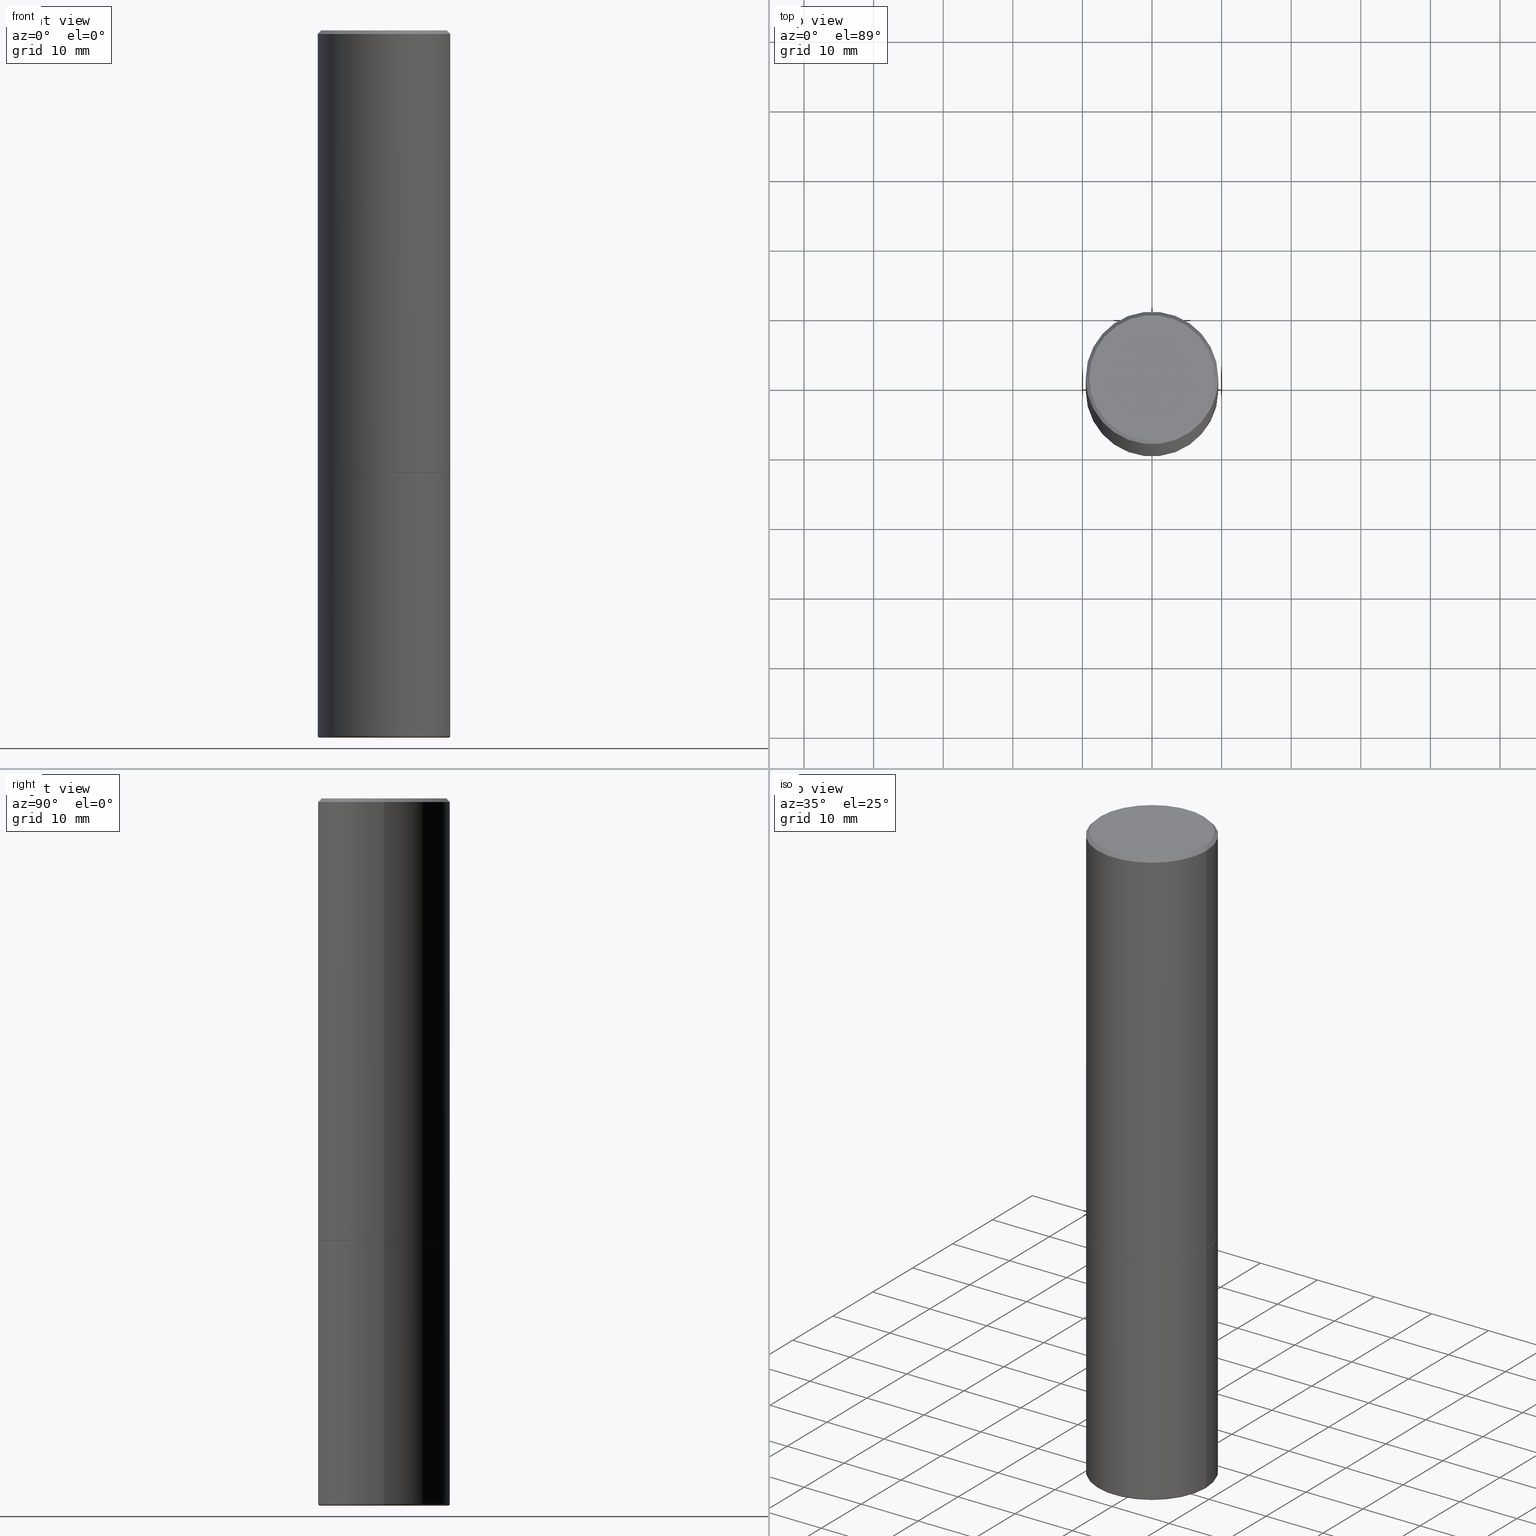
[diagram: canonical four-view strip — front | top / right | iso, engineering-drawing reading convention]
A machine part, canonical four-view strip (front | top / right | iso — engineering-drawing reading convention). The complete STEP part file that produces these views, byte-faithful:
ISO-10303-21;
HEADER;
FILE_DESCRIPTION (( 'STEP AP203' ),
    '1' );
FILE_NAME ('38867.STEP',
    '2024-03-03T18:12:23',
    ( '' ),
    ( '' ),
    'SwSTEP 2.0',
    'SolidWorks 2023',
    '' );
FILE_SCHEMA (( 'CONFIG_CONTROL_DESIGN' ));
ENDSEC;

DATA;
#1 = EDGE_CURVE ( 'NONE', #253, #224, #288, .T. ) ;
#2 = EDGE_LOOP ( 'NONE', ( #134, #81 ) ) ;
#3 = DIRECTION ( 'NONE',  ( -2.445468806185136597E-29, 3.491481338843145583E-15, 1.000000000000000000 ) ) ;
#4 = DIRECTION ( 'NONE',  ( -2.445468806185136597E-29, 3.491481338843145583E-15, 1.000000000000000000 ) ) ;
#5 = DESIGN_CONTEXT ( 'detailed design', #12, 'design' ) ;
#6 = LOCAL_TIME ( 13, 12, 23.00000000000000000, #44 ) ;
#7 = AXIS2_PLACEMENT_3D ( 'NONE', #163, #262, #380 ) ;
#8 = CARTESIAN_POINT ( 'NONE',  ( 0.000000000000000000, 0.000000000000000000, 0.000000000000000000 ) ) ;
#9 = ADVANCED_FACE ( 'NONE', ( #148 ), #403, .F. ) ;
#10 = CARTESIAN_POINT ( 'NONE',  ( 9.757420536678694842E-29, -1.393101054198414910E-14, -3.989999999999999769 ) ) ;
#11 = APPROVAL_ROLE ( '' ) ;
#12 = APPLICATION_CONTEXT ( 'configuration controlled 3d designs of mechanical parts and assemblies' ) ;
#13 = DIRECTION ( 'NONE',  ( -2.445468806185136597E-29, 3.491481338843145583E-15, 1.000000000000000000 ) ) ;
#14 = APPROVAL ( #252, 'UNSPECIFIED' ) ;
#15 = PLANE ( 'NONE',  #314 ) ;
#16 = APPROVAL_STATUS ( 'not_yet_approved' ) ;
#17 = ORIENTED_EDGE ( 'NONE', *, *, #317, .T. ) ;
#18 = VECTOR ( 'NONE', #126, 39.37007874015748143 ) ;
#19 = CLOSED_SHELL ( 'NONE', ( #154, #405, #174, #276, #300, #394, #109, #62 ) ) ;
#20 = DIRECTION ( 'NONE',  ( 1.000000000000000000, -6.982962677686265922E-15, 0.000000000000000000 ) ) ;
#21 = ORIENTED_EDGE ( 'NONE', *, *, #159, .F. ) ;
#22 = PRODUCT_DEFINITION ( 'UNKNOWN', '', #124, #5 ) ;
#23 = LOCAL_TIME ( 13, 12, 23.00000000000000000, #46 ) ;
#24 = ORIENTED_EDGE ( 'NONE', *, *, #73, .T. ) ;
#25 = FACE_OUTER_BOUND ( 'NONE', #297, .T. ) ;
#26 = ORIENTED_EDGE ( 'NONE', *, *, #189, .T. ) ;
#27 = DIRECTION ( 'NONE',  ( 1.000000000000000000, -6.982962677686265922E-15, 4.874095744806113407E-29 ) ) ;
#28 = CARTESIAN_POINT ( 'NONE',  ( 0.3649999999999999356, -1.651470673272807063E-14, -4.000000000000000000 ) ) ;
#29 = PRODUCT_DEFINITION_SHAPE ( 'NONE', 'NONE',  #22 ) ;
#30 = CARTESIAN_POINT ( 'NONE',  ( -0.3749999999999999445, 2.664535259100375303E-15, -1.844600658845589318E-29 ) ) ;
#31 = EDGE_CURVE ( 'NONE', #186, #303, #146, .T. ) ;
#32 = VERTEX_POINT ( 'NONE', #150 ) ;
#33 = DIRECTION ( 'NONE',  ( -2.445468806185136597E-29, 3.491481338843145583E-15, 1.000000000000000000 ) ) ;
#34 = DIRECTION ( 'NONE',  ( 1.000000000000000000, -6.982962677686266711E-15, 4.876176775795935793E-29 ) ) ;
#35 = EDGE_LOOP ( 'NONE', ( #408, #136, #194, #264 ) ) ;
#36 = CARTESIAN_POINT ( 'NONE',  ( 0.3739999999999999991, -1.134033138856252894E-14, -2.500000000000000000 ) ) ;
#37 = ORIENTED_EDGE ( 'NONE', *, *, #191, .F. ) ;
#38 = CARTESIAN_POINT ( 'NONE',  ( 9.781875224740546387E-29, -1.396592535537258233E-14, -4.000000000000000000 ) ) ;
#39 = CARTESIAN_POINT ( 'NONE',  ( 0.3750000000000001110, -2.642516375941188423E-15, -0.02000000000000008715 ) ) ;
#40 = ORIENTED_EDGE ( 'NONE', *, *, #212, .T. ) ;
#41 = DIRECTION ( 'NONE',  ( 1.000000000000000000, -6.982962677686265922E-15, 4.874095744806113407E-29 ) ) ;
#42 = APPROVAL_PERSON_ORGANIZATION ( #114, #247, #11 ) ;
#43 = EDGE_CURVE ( 'NONE', #165, #381, #168, .T. ) ;
#44 = COORDINATED_UNIVERSAL_TIME_OFFSET ( 5, 0, .BEHIND. ) ;
#45 = ORIENTED_EDGE ( 'NONE', *, *, #98, .F. ) ;
#46 = COORDINATED_UNIVERSAL_TIME_OFFSET ( 5, 0, .BEHIND. ) ;
#47 = EDGE_LOOP ( 'NONE', ( #233, #40, #265, #117 ) ) ;
#48 = CALENDAR_DATE ( 2024, 3, 3 ) ;
#49 = EDGE_CURVE ( 'NONE', #303, #224, #72, .T. ) ;
#50 = VECTOR ( 'NONE', #193, 39.37007874015748143 ) ;
#51 = VERTEX_POINT ( 'NONE', #220 ) ;
#52 = PERSON_AND_ORGANIZATION ( #328, #144 ) ;
#53 = FACE_OUTER_BOUND ( 'NONE', #2, .T. ) ;
#54 = ORIENTED_EDGE ( 'NONE', *, *, #1, .T. ) ;
#55 = DIRECTION ( 'NONE',  ( 2.445468806185136597E-29, -3.491481338843145583E-15, -1.000000000000000000 ) ) ;
#56 = ORIENTED_EDGE ( 'NONE', *, *, #211, .T. ) ;
#57 = CARTESIAN_POINT ( 'NONE',  ( 4.890937612370294178E-31, -6.982962677686321191E-17, -0.02000000000000008715 ) ) ;
#58 = EDGE_LOOP ( 'NONE', ( #321, #120 ) ) ;
#59 = CARTESIAN_POINT ( 'NONE',  ( 4.890937612370294178E-31, -6.982962677686321191E-17, -0.02000000000000008715 ) ) ;
#60 = LINE ( 'NONE', #30, #18 ) ;
#61 = DIRECTION ( 'NONE',  ( 0.7071067811867165487, -2.468850131084027659E-15, 0.7071067811863784858 ) ) ;
#62 = ADVANCED_FACE ( 'NONE', ( #53 ), #15, .F. ) ;
#63 = CYLINDRICAL_SURFACE ( 'NONE', #243, 0.3750000000000002220 ) ;
#64 = AXIS2_PLACEMENT_3D ( 'NONE', #75, #215, #278 ) ;
#65 =( CONVERSION_BASED_UNIT ( 'INCH', #244 ) LENGTH_UNIT ( ) NAMED_UNIT ( #141 ) );
#66 = DIRECTION ( 'NONE',  ( 1.000000000000000000, -6.982962677686267499E-15, 4.883557194083113462E-29 ) ) ;
#67 = FACE_OUTER_BOUND ( 'NONE', #58, .T. ) ;
#68 = CLOSED_SHELL ( 'NONE', ( #386, #125, #9, #389, #294, #336 ) ) ;
#69 = CYLINDRICAL_SURFACE ( 'NONE', #185, 0.3749999999999999445 ) ;
#70 = APPLICATION_PROTOCOL_DEFINITION ( 'international standard', 'config_control_design', 1994, #12 ) ;
#71 = CC_DESIGN_DATE_AND_TIME_ASSIGNMENT ( #183, #400, ( #214 ) ) ;
#72 = LINE ( 'NONE', #79, #393 ) ;
#73 = EDGE_CURVE ( 'NONE', #381, #165, #221, .T. ) ;
#74 = CARTESIAN_POINT ( 'NONE',  ( 0.000000000000000000, 0.000000000000000000, 0.000000000000000000 ) ) ;
#75 = CARTESIAN_POINT ( 'NONE',  ( 6.113672015462842613E-29, -8.728703347107864943E-15, -2.500000000000000000 ) ) ;
#76 = APPROVAL_PERSON_ORGANIZATION ( #119, #14, #367 ) ;
#77 = CIRCLE ( 'NONE', #364, 0.3749999999999999445 ) ;
#78 = PERSON_AND_ORGANIZATION_ROLE ( 'classification_officer' ) ;
#79 = CARTESIAN_POINT ( 'NONE',  ( 0.3749999999999999445, -2.618611004132349622E-15, 1.828566290923475642E-29 ) ) ;
#80 = EDGE_CURVE ( 'NONE', #51, #332, #251, .T. ) ;
#81 = ORIENTED_EDGE ( 'NONE', *, *, #143, .T. ) ;
#82 = EDGE_LOOP ( 'NONE', ( #329, #56, #155, #345 ) ) ;
#83 = CALENDAR_DATE ( 2024, 3, 3 ) ;
#84 = DIRECTION ( 'NONE',  ( -6.982962677686266711E-15, -1.000000000000000000, 3.491481338843145583E-15 ) ) ;
#85 = EDGE_LOOP ( 'NONE', ( #24, #162, #45, #412 ) ) ;
#86 = EDGE_CURVE ( 'NONE', #224, #253, #130, .T. ) ;
#87 = DIRECTION ( 'NONE',  ( -1.000000000000000000, 6.982962677686265922E-15, 0.000000000000000000 ) ) ;
#88 = ORIENTED_EDGE ( 'NONE', *, *, #236, .F. ) ;
#89 = DIRECTION ( 'NONE',  ( 7.105427357601001859E-15, 1.000000000000000000, -3.491481338843145583E-15 ) ) ;
#90 = CARTESIAN_POINT ( 'NONE',  ( -0.3739999999999999991, -6.071273515365089465E-15, -2.500000000000000000 ) ) ;
#91 = ORIENTED_EDGE ( 'NONE', *, *, #43, .F. ) ;
#92 = LINE ( 'NONE', #296, #50 ) ;
#93 = ORIENTED_EDGE ( 'NONE', *, *, #86, .T. ) ;
#94 = PRODUCT ( '38867', '38867', '', ( #397 ) ) ;
#95 = ORIENTED_EDGE ( 'NONE', *, *, #31, .T. ) ;
#96 = CARTESIAN_POINT ( 'NONE',  ( 9.781875224740546387E-29, -1.396592535537258233E-14, -4.000000000000000000 ) ) ;
#97 = ORIENTED_EDGE ( 'NONE', *, *, #180, .T. ) ;
#98 = EDGE_CURVE ( 'NONE', #129, #32, #373, .T. ) ;
#99 = DIRECTION ( 'NONE',  ( 1.000000000000000000, -6.982962677686268288E-15, 0.000000000000000000 ) ) ;
#100 = CC_DESIGN_APPROVAL ( #247, ( #124 ) ) ;
#101 = DIRECTION ( 'NONE',  ( -2.445468806185136597E-29, 3.491481338843145583E-15, 1.000000000000000000 ) ) ;
#102 = CC_DESIGN_PERSON_AND_ORGANIZATION_ASSIGNMENT ( #188, #111, ( #124 ) ) ;
#103 = AXIS2_PLACEMENT_3D ( 'NONE', #182, #338, #309 ) ;
#104 = ORIENTED_EDGE ( 'NONE', *, *, #110, .T. ) ;
#105 =( NAMED_UNIT ( * ) SI_UNIT ( $, .STERADIAN. ) SOLID_ANGLE_UNIT ( ) );
#106 = AXIS2_PLACEMENT_3D ( 'NONE', #359, #335, #133 ) ;
#107 = CARTESIAN_POINT ( 'NONE',  ( 4.890937612370294178E-31, -6.982962677686321191E-17, -0.02000000000000008715 ) ) ;
#108 = VECTOR ( 'NONE', #416, 39.37007874015748143 ) ;
#109 = ADVANCED_FACE ( 'NONE', ( #396 ), #113, .F. ) ;
#110 = EDGE_CURVE ( 'NONE', #186, #284, #202, .T. ) ;
#111 = PERSON_AND_ORGANIZATION_ROLE ( 'creator' ) ;
#112 = APPLICATION_PROTOCOL_DEFINITION ( 'international standard', 'config_control_design', 1994, #392 ) ;
#113 = PLANE ( 'NONE',  #151 ) ;
#114 = PERSON_AND_ORGANIZATION ( #328, #144 ) ;
#115 = AXIS2_PLACEMENT_3D ( 'NONE', #96, #230, #290 ) ;
#116 = CC_DESIGN_PERSON_AND_ORGANIZATION_ASSIGNMENT ( #365, #184, ( #124 ) ) ;
#117 = ORIENTED_EDGE ( 'NONE', *, *, #361, .F. ) ;
#118 = CC_DESIGN_SECURITY_CLASSIFICATION ( #214, ( #124 ) ) ;
#119 = PERSON_AND_ORGANIZATION ( #328, #144 ) ;
#120 = ORIENTED_EDGE ( 'NONE', *, *, #158, .F. ) ;
#121 = APPROVAL_DATE_TIME ( #249, #247 ) ;
#122 = CARTESIAN_POINT ( 'NONE',  ( 0.3649999999999999356, -1.647979191933963740E-14, -3.989999999999999769 ) ) ;
#123 = DIRECTION ( 'NONE',  ( 1.000000000000000000, -6.982962677686262766E-15, 0.000000000000000000 ) ) ;
#124 = PRODUCT_DEFINITION_FORMATION_WITH_SPECIFIED_SOURCE ( 'ANY', '', #94, .NOT_KNOWN. ) ;
#125 = ADVANCED_FACE ( 'NONE', ( #25 ), #358, .T. ) ;
#126 = DIRECTION ( 'NONE',  ( -2.445468806185136877E-29, 3.491481338843145188E-15, 1.000000000000000000 ) ) ;
#127 = CARTESIAN_POINT ( 'NONE',  ( -2.922783960138615261E-45, 4.172960877065252270E-31, 1.195183497228115035E-16 ) ) ;
#128 = CIRCLE ( 'NONE', #178, 0.3750000000000001110 ) ;
#129 = VERTEX_POINT ( 'NONE', #169 ) ;
#130 = CIRCLE ( 'NONE', #399, 0.3750000000000000555 ) ;
#131 = CARTESIAN_POINT ( 'NONE',  ( 9.757420536678694842E-29, -1.393101054198414910E-14, -3.989999999999999769 ) ) ;
#132 = ORIENTED_EDGE ( 'NONE', *, *, #404, .T. ) ;
#133 = DIRECTION ( 'NONE',  ( 1.000000000000000000, -6.982962677686263555E-15, 0.000000000000000000 ) ) ;
#134 = ORIENTED_EDGE ( 'NONE', *, *, #80, .T. ) ;
#135 = DIRECTION ( 'NONE',  ( 2.438088387897960049E-29, -3.491481338843145188E-15, -1.000000000000000000 ) ) ;
#136 = ORIENTED_EDGE ( 'NONE', *, *, #236, .T. ) ;
#137 = CC_DESIGN_APPROVAL ( #14, ( #214 ) ) ;
#138 = DIRECTION ( 'NONE',  ( 1.000000000000000000, -6.982962677686266711E-15, 4.876176775795935793E-29 ) ) ;
#139 = AXIS2_PLACEMENT_3D ( 'NONE', #57, #55, #195 ) ;
#140 = CARTESIAN_POINT ( 'NONE',  ( 0.3750000000000001110, -2.642516375941188423E-15, -0.02000000000000008715 ) ) ;
#141 = DIMENSIONAL_EXPONENTS ( 1.000000000000000000, 0.000000000000000000, 0.000000000000000000, 0.000000000000000000, 0.000000000000000000, 0.000000000000000000, 0.000000000000000000 ) ;
#142 = DIRECTION ( 'NONE',  ( -1.000000000000000000, 6.982962677686265922E-15, -4.876176775795935793E-29 ) ) ;
#143 = EDGE_CURVE ( 'NONE', #332, #51, #197, .T. ) ;
#144 = ORGANIZATION ( 'UNSPECIFIED', 'UNSPECIFIED', '' ) ;
#145 = UNCERTAINTY_MEASURE_WITH_UNIT (LENGTH_MEASURE( 1.000000000000000082E-05 ), #65, 'distance_accuracy_value', 'NONE');
#146 = CIRCLE ( 'NONE', #417, 0.01000000000000009909 ) ;
#147 = APPROVAL_ROLE ( '' ) ;
#148 = FACE_OUTER_BOUND ( 'NONE', #410, .T. ) ;
#149 = DIRECTION ( 'NONE',  ( 0.000000000000000000, 0.000000000000000000, 1.000000000000000000 ) ) ;
#150 = CARTESIAN_POINT ( 'NONE',  ( -0.3750000000000002776, -1.732985487172563764E-15, -2.499000000000000110 ) ) ;
#151 = AXIS2_PLACEMENT_3D ( 'NONE', #248, #292, #409 ) ;
#152 = APPROVAL_STATUS ( 'not_yet_approved' ) ;
#153 = ORIENTED_EDGE ( 'NONE', *, *, #378, .F. ) ;
#154 = ADVANCED_FACE ( 'NONE', ( #323 ), #187, .T. ) ;
#155 = ORIENTED_EDGE ( 'NONE', *, *, #86, .F. ) ;
#156 = DIRECTION ( 'NONE',  ( -2.445468806185136597E-29, 3.491481338843145583E-15, 1.000000000000000000 ) ) ;
#157 = CC_DESIGN_PERSON_AND_ORGANIZATION_ASSIGNMENT ( #342, #78, ( #214 ) ) ;
#158 = EDGE_CURVE ( 'NONE', #284, #186, #340, .T. ) ;
#159 = EDGE_CURVE ( 'NONE', #51, #343, #351, .T. ) ;
#160 = AXIS2_PLACEMENT_3D ( 'NONE', #390, #3, #34 ) ;
#161 = AXIS2_PLACEMENT_3D ( 'NONE', #376, #232, #326 ) ;
#162 = ORIENTED_EDGE ( 'NONE', *, *, #204, .T. ) ;
#163 = CARTESIAN_POINT ( 'NONE',  ( 9.781875224740546387E-29, -1.396592535537258233E-14, -4.000000000000000000 ) ) ;
#164 = CARTESIAN_POINT ( 'NONE',  ( 6.113672015462842613E-29, -8.728703347107864943E-15, -2.500000000000000000 ) ) ;
#165 = VERTEX_POINT ( 'NONE', #226 ) ;
#166 = ORIENTED_EDGE ( 'NONE', *, *, #31, .F. ) ;
#167 = CONICAL_SURFACE ( 'NONE', #263, 0.3750000000000001110, 0.7853981633974463916 ) ;
#168 = CIRCLE ( 'NONE', #64, 0.3739999999999999991 ) ;
#169 = CARTESIAN_POINT ( 'NONE',  ( 0.3750000000000002776, -1.134382286990137353E-14, -2.499000000000000110 ) ) ;
#170 = MANIFOLD_SOLID_BREP ( 'Body-Move/Copy2[1]', #68 ) ;
#171 = ORIENTED_EDGE ( 'NONE', *, *, #378, .T. ) ;
#172 = ORIENTED_EDGE ( 'NONE', *, *, #49, .T. ) ;
#173 = CARTESIAN_POINT ( 'NONE',  ( 0.000000000000000000, 0.000000000000000000, 0.000000000000000000 ) ) ;
#174 = ADVANCED_FACE ( 'NONE', ( #223 ), #322, .T. ) ;
#175 = CARTESIAN_POINT ( 'NONE',  ( 0.000000000000000000, 0.000000000000000000, 0.000000000000000000 ) ) ;
#176 = FACE_OUTER_BOUND ( 'NONE', #82, .T. ) ;
#177 = FACE_OUTER_BOUND ( 'NONE', #222, .T. ) ;
#178 = AXIS2_PLACEMENT_3D ( 'NONE', #107, #210, #353 ) ;
#179 = CARTESIAN_POINT ( 'NONE',  ( 6.113672015462842613E-29, -8.728703347107864943E-15, -2.500000000000000000 ) ) ;
#180 = EDGE_CURVE ( 'NONE', #218, #303, #77, .T. ) ;
#181 = DATE_AND_TIME ( #217, #6 ) ;
#182 = CARTESIAN_POINT ( 'NONE',  ( 6.113672015462842613E-29, -8.728703347107864943E-15, -2.500000000000000000 ) ) ;
#183 = DATE_AND_TIME ( #310, #23 ) ;
#184 = PERSON_AND_ORGANIZATION_ROLE ( 'design_supplier' ) ;
#185 = AXIS2_PLACEMENT_3D ( 'NONE', #8, #101, #138 ) ;
#186 = VERTEX_POINT ( 'NONE', #28 ) ;
#187 = CONICAL_SURFACE ( 'NONE', #295, 0.3739999999999999991, 0.7853981633976873100 ) ;
#188 = PERSON_AND_ORGANIZATION ( #328, #144 ) ;
#189 = EDGE_CURVE ( 'NONE', #381, #129, #382, .T. ) ;
#190 = DIRECTION ( 'NONE',  ( 1.000000000000000000, -6.982962677686268288E-15, 0.000000000000000000 ) ) ;
#191 = EDGE_CURVE ( 'NONE', #284, #218, #339, .T. ) ;
#192 = ORIENTED_EDGE ( 'NONE', *, *, #180, .F. ) ;
#193 = DIRECTION ( 'NONE',  ( -2.445468806185136877E-29, 3.491481338843145188E-15, 1.000000000000000000 ) ) ;
#194 = ORIENTED_EDGE ( 'NONE', *, *, #361, .T. ) ;
#195 = DIRECTION ( 'NONE',  ( -1.000000000000000000, 6.982962677686265922E-15, 0.000000000000000000 ) ) ;
#196 = AXIS2_PLACEMENT_3D ( 'NONE', #209, #33, #99 ) ;
#197 = CIRCLE ( 'NONE', #388, 0.3549999999999999822 ) ;
#198 = DIRECTION ( 'NONE',  ( 2.445468806185136597E-29, -3.491481338843145583E-15, -1.000000000000000000 ) ) ;
#199 = CARTESIAN_POINT ( 'NONE',  ( 0.3750000000000000555, -1.134731435124021338E-14, -2.500000000000000000 ) ) ;
#200 = DIRECTION ( 'NONE',  ( -2.445468806185136597E-29, 3.491481338843145583E-15, 1.000000000000000000 ) ) ;
#201 = CIRCLE ( 'NONE', #106, 0.3749999999999999445 ) ;
#202 = CIRCLE ( 'NONE', #7, 0.3649999999999999356 ) ;
#203 = DIRECTION ( 'NONE',  ( 1.000000000000000000, -6.982962677686266711E-15, 4.876176775795935793E-29 ) ) ;
#204 = EDGE_CURVE ( 'NONE', #165, #32, #377, .T. ) ;
#205 = CARTESIAN_POINT ( 'NONE',  ( -0.3750000000000001110, 2.548781377355487113E-15, -0.02000000000000008715 ) ) ;
#206 =( NAMED_UNIT ( * ) PLANE_ANGLE_UNIT ( ) SI_UNIT ( $, .RADIAN. ) );
#207 = VECTOR ( 'NONE', #385, 39.37007874015748143 ) ;
#208 = ORIENTED_EDGE ( 'NONE', *, *, #159, .T. ) ;
#209 = CARTESIAN_POINT ( 'NONE',  ( 6.113672015462842613E-29, -8.728703347107864943E-15, -2.500000000000000000 ) ) ;
#210 = DIRECTION ( 'NONE',  ( -2.445468806185136597E-29, 3.491481338843145583E-15, 1.000000000000000000 ) ) ;
#211 = EDGE_CURVE ( 'NONE', #218, #253, #60, .T. ) ;
#212 = EDGE_CURVE ( 'NONE', #32, #343, #92, .T. ) ;
#213 = DIRECTION ( 'NONE',  ( -2.445468806185136597E-29, 3.491481338843145583E-15, 1.000000000000000000 ) ) ;
#214 = SECURITY_CLASSIFICATION ( '', '', #337 ) ;
#215 = DIRECTION ( 'NONE',  ( -2.445468806185136597E-29, 3.491481338843145583E-15, 1.000000000000000000 ) ) ;
#216 = DIRECTION ( 'NONE',  ( 2.438088387897960049E-29, -3.491481338843145188E-15, -1.000000000000000000 ) ) ;
#217 = CALENDAR_DATE ( 2024, 3, 3 ) ;
#218 = VERTEX_POINT ( 'NONE', #418 ) ;
#219 = CALENDAR_DATE ( 2024, 3, 3 ) ;
#220 = CARTESIAN_POINT ( 'NONE',  ( -0.3549999999999999822, 2.513866563967055858E-15, 1.195183497227940499E-16 ) ) ;
#221 = CIRCLE ( 'NONE', #355, 0.3739999999999999991 ) ;
#222 = EDGE_LOOP ( 'NONE', ( #375, #97, #172, #237 ) ) ;
#223 = FACE_OUTER_BOUND ( 'NONE', #318, .T. ) ;
#224 = VERTEX_POINT ( 'NONE', #199 ) ;
#225 = CARTESIAN_POINT ( 'NONE',  ( 6.111226546656657010E-29, -8.725211865769021935E-15, -2.499000000000000110 ) ) ;
#226 = CARTESIAN_POINT ( 'NONE',  ( -0.3739999999999999991, -6.065975061016866274E-15, -2.500000000000000000 ) ) ;
#227 = CIRCLE ( 'NONE', #312, 0.3750000000000002776 ) ;
#228 = AXIS2_PLACEMENT_3D ( 'NONE', #315, #156, #308 ) ;
#229 = ORIENTED_EDGE ( 'NONE', *, *, #204, .F. ) ;
#230 = DIRECTION ( 'NONE',  ( -2.445468806185136597E-29, 3.491481338843145583E-15, 1.000000000000000000 ) ) ;
#231 = EDGE_LOOP ( 'NONE', ( #289, #91 ) ) ;
#232 = DIRECTION ( 'NONE',  ( -2.445468806185136597E-29, 3.491481338843145583E-15, 1.000000000000000000 ) ) ;
#233 = ORIENTED_EDGE ( 'NONE', *, *, #98, .T. ) ;
#234 = CC_DESIGN_DATE_AND_TIME_ASSIGNMENT ( #181, #255, ( #22 ) ) ;
#235 = DIRECTION ( 'NONE',  ( 1.000000000000000000, -6.982962677686265922E-15, 0.000000000000000000 ) ) ;
#236 = EDGE_CURVE ( 'NONE', #32, #129, #227, .T. ) ;
#237 = ORIENTED_EDGE ( 'NONE', *, *, #1, .F. ) ;
#238 = APPROVAL_PERSON_ORGANIZATION ( #52, #372, #147 ) ;
#239 = ORIENTED_EDGE ( 'NONE', *, *, #158, .T. ) ;
#240 =( LENGTH_UNIT ( ) NAMED_UNIT ( * ) SI_UNIT ( $, .METRE. ) );
#241 = ADVANCED_BREP_SHAPE_REPRESENTATION ( '38867', ( #170, #299, #387 ), #344 ) ;
#242 = CARTESIAN_POINT ( 'NONE',  ( 0.3549999999999999822, -2.538996582575041048E-15, 1.195183497228290556E-16 ) ) ;
#243 = AXIS2_PLACEMENT_3D ( 'NONE', #173, #298, #356 ) ;
#244 = LENGTH_MEASURE_WITH_UNIT ( LENGTH_MEASURE( 0.02539999999999999897 ), #240 );
#245 = APPROVAL_DATE_TIME ( #277, #372 ) ;
#246 = PERSON_AND_ORGANIZATION_ROLE ( 'design_owner' ) ;
#247 = APPROVAL ( #16, 'UNSPECIFIED' ) ;
#248 = CARTESIAN_POINT ( 'NONE',  ( 6.113672015462842613E-29, -8.728703347107864943E-15, -2.500000000000000000 ) ) ;
#249 = DATE_AND_TIME ( #48, #286 ) ;
#250 = CARTESIAN_POINT ( 'NONE',  ( 6.113672015462842613E-29, -8.728703347107864943E-15, -2.500000000000000000 ) ) ;
#251 = CIRCLE ( 'NONE', #350, 0.3549999999999999822 ) ;
#252 = APPROVAL_STATUS ( 'not_yet_approved' ) ;
#253 = VERTEX_POINT ( 'NONE', #258 ) ;
#254 = EDGE_LOOP ( 'NONE', ( #229, #283, #26, #88 ) ) ;
#255 = DATE_TIME_ROLE ( 'creation_date' ) ;
#256 = CARTESIAN_POINT ( 'NONE',  ( 2.478951750578624209E-15, 0.3549999999999999822, -1.179716700427910864E-15 ) ) ;
#257 = CIRCLE ( 'NONE', #415, 0.3750000000000001110 ) ;
#258 = CARTESIAN_POINT ( 'NONE',  ( -0.3750000000000000555, -8.665321685445630537E-15, -2.500000000000000000 ) ) ;
#259 = DIRECTION ( 'NONE',  ( -2.445468806185136597E-29, 3.491481338843145583E-15, 1.000000000000000000 ) ) ;
#260 = CARTESIAN_POINT ( 'NONE',  ( 0.3739999999999999991, -1.134033138856252894E-14, -2.500000000000000000 ) ) ;
#261 = ORIENTED_EDGE ( 'NONE', *, *, #191, .T. ) ;
#262 = DIRECTION ( 'NONE',  ( -2.445468806185136597E-29, 3.491481338843145583E-15, 1.000000000000000000 ) ) ;
#263 = AXIS2_PLACEMENT_3D ( 'NONE', #59, #198, #87 ) ;
#264 = ORIENTED_EDGE ( 'NONE', *, *, #317, .F. ) ;
#265 = ORIENTED_EDGE ( 'NONE', *, *, #404, .F. ) ;
#266 = CARTESIAN_POINT ( 'NONE',  ( -0.3649999999999999356, -1.133752955645978349E-14, -3.989999999999999769 ) ) ;
#267 = CC_DESIGN_PERSON_AND_ORGANIZATION_ASSIGNMENT ( #395, #246, ( #94 ) ) ;
#268 = PLANE ( 'NONE',  #274 ) ;
#269 = DIRECTION ( 'NONE',  ( -2.445468806185136597E-29, 3.491481338843145583E-15, 1.000000000000000000 ) ) ;
#270 = AXIS2_PLACEMENT_3D ( 'NONE', #250, #13, #366 ) ;
#271 = CARTESIAN_POINT ( 'NONE',  ( 4.890937612370294178E-31, -6.982962677686321191E-17, -0.02000000000000008715 ) ) ;
#272 = PRODUCT_RELATED_PRODUCT_CATEGORY ( 'detail', '', ( #94 ) ) ;
#273 = CYLINDRICAL_SURFACE ( 'NONE', #293, 0.3750000000000002220 ) ;
#274 = AXIS2_PLACEMENT_3D ( 'NONE', #38, #135, #142 ) ;
#275 = DATE_AND_TIME ( #219, #319 ) ;
#276 = ADVANCED_FACE ( 'NONE', ( #374 ), #167, .T. ) ;
#277 = DATE_AND_TIME ( #83, #307 ) ;
#278 = DIRECTION ( 'NONE',  ( 1.000000000000000000, -6.982962677686268288E-15, 0.000000000000000000 ) ) ;
#279 = TOROIDAL_SURFACE ( 'NONE', #379, 0.3649999999999999356, 0.01000000000000009909 ) ;
#280 = COORDINATED_UNIVERSAL_TIME_OFFSET ( 5, 0, .BEHIND. ) ;
#281 = DIRECTION ( 'NONE',  ( -2.445468806185136597E-29, 3.491481338843145583E-15, 1.000000000000000000 ) ) ;
#282 = DIRECTION ( 'NONE',  ( 1.000000000000000000, 0.000000000000000000, 0.000000000000000000 ) ) ;
#283 = ORIENTED_EDGE ( 'NONE', *, *, #43, .T. ) ;
#284 = VERTEX_POINT ( 'NONE', #316 ) ;
#285 = ORIENTED_EDGE ( 'NONE', *, *, #80, .F. ) ;
#286 = LOCAL_TIME ( 13, 12, 23.00000000000000000, #280 ) ;
#287 = FACE_OUTER_BOUND ( 'NONE', #35, .T. ) ;
#288 = CIRCLE ( 'NONE', #270, 0.3750000000000000555 ) ;
#289 = ORIENTED_EDGE ( 'NONE', *, *, #73, .F. ) ;
#290 = DIRECTION ( 'NONE',  ( 1.000000000000000000, -6.982962677686267499E-15, 0.000000000000000000 ) ) ;
#291 = CARTESIAN_POINT ( 'NONE',  ( -0.3750000000000001110, 2.548781377355487113E-15, -0.02000000000000008715 ) ) ;
#292 = DIRECTION ( 'NONE',  ( -2.438088387897960049E-29, 3.491481338843145188E-15, 1.000000000000000000 ) ) ;
#293 = AXIS2_PLACEMENT_3D ( 'NONE', #175, #4, #203 ) ;
#294 = ADVANCED_FACE ( 'NONE', ( #324 ), #279, .T. ) ;
#295 = AXIS2_PLACEMENT_3D ( 'NONE', #164, #200, #352 ) ;
#296 = CARTESIAN_POINT ( 'NONE',  ( -0.3750000000000002220, 2.664535259100377275E-15, -1.844600658845590719E-29 ) ) ;
#297 = EDGE_LOOP ( 'NONE', ( #104, #261, #383, #166 ) ) ;
#298 = DIRECTION ( 'NONE',  ( -2.445468806185136597E-29, 3.491481338843145583E-15, 1.000000000000000000 ) ) ;
#299 = MANIFOLD_SOLID_BREP ( 'Body-Move/Copy2[2]', #19 ) ;
#300 = ADVANCED_FACE ( 'NONE', ( #287 ), #273, .T. ) ;
#301 = FACE_OUTER_BOUND ( 'NONE', #47, .T. ) ;
#302 = CC_DESIGN_APPROVAL ( #372, ( #22 ) ) ;
#303 = VERTEX_POINT ( 'NONE', #334 ) ;
#304 = FACE_OUTER_BOUND ( 'NONE', #254, .T. ) ;
#305 = DIRECTION ( 'NONE',  ( 0.7071067811865461294, -7.319954787623251312E-15, -0.7071067811865489050 ) ) ;
#306 = CC_DESIGN_PERSON_AND_ORGANIZATION_ASSIGNMENT ( #341, #363, ( #22 ) ) ;
#307 = LOCAL_TIME ( 13, 12, 23.00000000000000000, #402 ) ;
#308 = DIRECTION ( 'NONE',  ( 1.000000000000000000, -6.982962677686265922E-15, 0.000000000000000000 ) ) ;
#309 = DIRECTION ( 'NONE',  ( -1.000000000000000000, 6.982962677686265922E-15, -4.876176775795935793E-29 ) ) ;
#310 = CALENDAR_DATE ( 2024, 3, 3 ) ;
#311 = CARTESIAN_POINT ( 'NONE',  ( -2.922783960138615261E-45, 4.172960877065252270E-31, 1.195183497228115035E-16 ) ) ;
#312 = AXIS2_PLACEMENT_3D ( 'NONE', #225, #347, #20 ) ;
#313 = SHAPE_DEFINITION_REPRESENTATION ( #29, #241 ) ;
#314 = AXIS2_PLACEMENT_3D ( 'NONE', #256, #216, #406 ) ;
#315 = CARTESIAN_POINT ( 'NONE',  ( 6.111226546656657010E-29, -8.725211865769021935E-15, -2.499000000000000110 ) ) ;
#316 = CARTESIAN_POINT ( 'NONE',  ( -0.3649999999999999356, -1.131945982636599743E-14, -4.000000000000000000 ) ) ;
#317 = EDGE_CURVE ( 'NONE', #343, #398, #128, .T. ) ;
#318 = EDGE_LOOP ( 'NONE', ( #348, #171, #132, #21 ) ) ;
#319 = LOCAL_TIME ( 13, 12, 23.00000000000000000, #369 ) ;
#320 = DIRECTION ( 'NONE',  ( -2.445468806185136597E-29, 3.491481338843145583E-15, 1.000000000000000000 ) ) ;
#321 = ORIENTED_EDGE ( 'NONE', *, *, #110, .F. ) ;
#322 = CONICAL_SURFACE ( 'NONE', #139, 0.3750000000000001110, 0.7853981633974463916 ) ;
#323 = FACE_OUTER_BOUND ( 'NONE', #85, .T. ) ;
#324 = FACE_OUTER_BOUND ( 'NONE', #368, .T. ) ;
#325 = EDGE_CURVE ( 'NONE', #303, #218, #201, .T. ) ;
#326 = DIRECTION ( 'NONE',  ( 1.000000000000000000, -6.982962677686267499E-15, 4.883557194083113462E-29 ) ) ;
#327 = VECTOR ( 'NONE', #349, 39.37007874015748143 ) ;
#328 = PERSON ( 'UNSPECIFIED', 'UNSPECIFIED', 'UNSPECIFIED', ('UNSPECIFIED'), ('UNSPECIFIED'), ('UNSPECIFIED') ) ;
#329 = ORIENTED_EDGE ( 'NONE', *, *, #325, .T. ) ;
#330 = CYLINDRICAL_SURFACE ( 'NONE', #160, 0.3749999999999999445 ) ;
#331 = CARTESIAN_POINT ( 'NONE',  ( 0.3750000000000002220, -2.618611004132351594E-15, 1.828566290923477043E-29 ) ) ;
#332 = VERTEX_POINT ( 'NONE', #242 ) ;
#333 = LINE ( 'NONE', #331, #207 ) ;
#334 = CARTESIAN_POINT ( 'NONE',  ( 0.3749999999999999445, -1.654962154611649754E-14, -3.989999999999999769 ) ) ;
#335 = DIRECTION ( 'NONE',  ( -2.445468806185136597E-29, 3.491481338843145583E-15, 1.000000000000000000 ) ) ;
#336 = ADVANCED_FACE ( 'NONE', ( #67 ), #268, .T. ) ;
#337 = SECURITY_CLASSIFICATION_LEVEL ( 'unclassified' ) ;
#338 = DIRECTION ( 'NONE',  ( 2.438088387897960049E-29, -3.491481338843145188E-15, -1.000000000000000000 ) ) ;
#339 = CIRCLE ( 'NONE', #371, 0.01000000000000009909 ) ;
#340 = CIRCLE ( 'NONE', #115, 0.3649999999999999356 ) ;
#341 = PERSON_AND_ORGANIZATION ( #328, #144 ) ;
#342 = PERSON_AND_ORGANIZATION ( #328, #144 ) ;
#343 = VERTEX_POINT ( 'NONE', #205 ) ;
#344 =( GEOMETRIC_REPRESENTATION_CONTEXT ( 3 ) GLOBAL_UNCERTAINTY_ASSIGNED_CONTEXT ( ( #145 ) ) GLOBAL_UNIT_ASSIGNED_CONTEXT ( ( #65, #206, #105 ) ) REPRESENTATION_CONTEXT ( 'NONE', 'WORKASPACE' ) );
#345 = ORIENTED_EDGE ( 'NONE', *, *, #49, .F. ) ;
#346 = DIRECTION ( 'NONE',  ( -2.445468806185136597E-29, 3.491481338843145583E-15, 1.000000000000000000 ) ) ;
#347 = DIRECTION ( 'NONE',  ( -2.445468806185136597E-29, 3.491481338843145583E-15, 1.000000000000000000 ) ) ;
#348 = ORIENTED_EDGE ( 'NONE', *, *, #143, .F. ) ;
#349 = DIRECTION ( 'NONE',  ( -0.7071067811867165487, 7.493145998870964739E-15, 0.7071067811863784858 ) ) ;
#350 = AXIS2_PLACEMENT_3D ( 'NONE', #311, #213, #41 ) ;
#351 = LINE ( 'NONE', #291, #108 ) ;
#352 = DIRECTION ( 'NONE',  ( 1.000000000000000000, -6.982962677686268288E-15, 0.000000000000000000 ) ) ;
#353 = DIRECTION ( 'NONE',  ( 1.000000000000000000, -6.982962677686265922E-15, 0.000000000000000000 ) ) ;
#354 = VECTOR ( 'NONE', #61, 39.37007874015748143 ) ;
#355 = AXIS2_PLACEMENT_3D ( 'NONE', #370, #346, #190 ) ;
#356 = DIRECTION ( 'NONE',  ( 1.000000000000000000, -6.982962677686266711E-15, 4.876176775795935793E-29 ) ) ;
#357 = LINE ( 'NONE', #39, #407 ) ;
#358 = TOROIDAL_SURFACE ( 'NONE', #161, 0.3649999999999999356, 0.01000000000000009909 ) ;
#359 = CARTESIAN_POINT ( 'NONE',  ( 9.757420536678694842E-29, -1.393101054198414910E-14, -3.989999999999999769 ) ) ;
#360 = APPROVAL_DATE_TIME ( #275, #14 ) ;
#361 = EDGE_CURVE ( 'NONE', #129, #398, #333, .T. ) ;
#362 = DIRECTION ( 'NONE',  ( -2.445468806185136877E-29, 3.491481338843145188E-15, 1.000000000000000000 ) ) ;
#363 = PERSON_AND_ORGANIZATION_ROLE ( 'creator' ) ;
#364 = AXIS2_PLACEMENT_3D ( 'NONE', #131, #259, #413 ) ;
#365 = PERSON_AND_ORGANIZATION ( #328, #144 ) ;
#366 = DIRECTION ( 'NONE',  ( 1.000000000000000000, -6.982962677686264344E-15, 0.000000000000000000 ) ) ;
#367 = APPROVAL_ROLE ( '' ) ;
#368 = EDGE_LOOP ( 'NONE', ( #37, #239, #95, #192 ) ) ;
#369 = COORDINATED_UNIVERSAL_TIME_OFFSET ( 5, 0, .BEHIND. ) ;
#370 = CARTESIAN_POINT ( 'NONE',  ( 6.113672015462842613E-29, -8.728703347107864943E-15, -2.500000000000000000 ) ) ;
#371 = AXIS2_PLACEMENT_3D ( 'NONE', #266, #89, #411 ) ;
#372 = APPROVAL ( #152, 'UNSPECIFIED' ) ;
#373 = CIRCLE ( 'NONE', #228, 0.3750000000000002776 ) ;
#374 = FACE_OUTER_BOUND ( 'NONE', #414, .T. ) ;
#375 = ORIENTED_EDGE ( 'NONE', *, *, #211, .F. ) ;
#376 = CARTESIAN_POINT ( 'NONE',  ( 9.757420536678694842E-29, -1.393101054198414910E-14, -3.989999999999999769 ) ) ;
#377 = LINE ( 'NONE', #90, #327 ) ;
#378 = EDGE_CURVE ( 'NONE', #332, #398, #357, .T. ) ;
#379 = AXIS2_PLACEMENT_3D ( 'NONE', #10, #269, #66 ) ;
#380 = DIRECTION ( 'NONE',  ( 1.000000000000000000, -6.982962677686267499E-15, 0.000000000000000000 ) ) ;
#381 = VERTEX_POINT ( 'NONE', #36 ) ;
#382 = LINE ( 'NONE', #260, #354 ) ;
#383 = ORIENTED_EDGE ( 'NONE', *, *, #325, .F. ) ;
#384 = DIRECTION ( 'NONE',  ( -2.445468806185136597E-29, 3.491481338843145583E-15, 1.000000000000000000 ) ) ;
#385 = DIRECTION ( 'NONE',  ( -2.445468806185136877E-29, 3.491481338843145188E-15, 1.000000000000000000 ) ) ;
#386 = ADVANCED_FACE ( 'NONE', ( #176 ), #330, .T. ) ;
#387 = AXIS2_PLACEMENT_3D ( 'NONE', #74, #149, #282 ) ;
#388 = AXIS2_PLACEMENT_3D ( 'NONE', #127, #320, #27 ) ;
#389 = ADVANCED_FACE ( 'NONE', ( #177 ), #69, .T. ) ;
#390 = CARTESIAN_POINT ( 'NONE',  ( 0.000000000000000000, 0.000000000000000000, 0.000000000000000000 ) ) ;
#391 = CONICAL_SURFACE ( 'NONE', #196, 0.3739999999999999991, 0.7853981633976873100 ) ;
#392 = APPLICATION_CONTEXT ( 'configuration controlled 3d designs of mechanical parts and assemblies' ) ;
#393 = VECTOR ( 'NONE', #362, 39.37007874015748143 ) ;
#394 = ADVANCED_FACE ( 'NONE', ( #304 ), #391, .T. ) ;
#395 = PERSON_AND_ORGANIZATION ( #328, #144 ) ;
#396 = FACE_OUTER_BOUND ( 'NONE', #231, .T. ) ;
#397 = MECHANICAL_CONTEXT ( 'NONE', #392, 'mechanical' ) ;
#398 = VERTEX_POINT ( 'NONE', #140 ) ;
#399 = AXIS2_PLACEMENT_3D ( 'NONE', #179, #281, #401 ) ;
#400 = DATE_TIME_ROLE ( 'classification_date' ) ;
#401 = DIRECTION ( 'NONE',  ( 1.000000000000000000, -6.982962677686264344E-15, 0.000000000000000000 ) ) ;
#402 = COORDINATED_UNIVERSAL_TIME_OFFSET ( 5, 0, .BEHIND. ) ;
#403 = PLANE ( 'NONE',  #103 ) ;
#404 = EDGE_CURVE ( 'NONE', #398, #343, #257, .T. ) ;
#405 = ADVANCED_FACE ( 'NONE', ( #301 ), #63, .T. ) ;
#406 = DIRECTION ( 'NONE',  ( -1.000000000000000000, 6.982962677686265922E-15, -4.876176775795935793E-29 ) ) ;
#407 = VECTOR ( 'NONE', #305, 39.37007874015748143 ) ;
#408 = ORIENTED_EDGE ( 'NONE', *, *, #212, .F. ) ;
#409 = DIRECTION ( 'NONE',  ( 1.000000000000000000, -6.982962677686265922E-15, 4.876176775795935793E-29 ) ) ;
#410 = EDGE_LOOP ( 'NONE', ( #93, #54 ) ) ;
#411 = DIRECTION ( 'NONE',  ( -1.000000000000000000, 7.105427357601049190E-15, 0.000000000000000000 ) ) ;
#412 = ORIENTED_EDGE ( 'NONE', *, *, #189, .F. ) ;
#413 = DIRECTION ( 'NONE',  ( 1.000000000000000000, -6.982962677686263555E-15, 0.000000000000000000 ) ) ;
#414 = EDGE_LOOP ( 'NONE', ( #153, #285, #208, #17 ) ) ;
#415 = AXIS2_PLACEMENT_3D ( 'NONE', #271, #384, #235 ) ;
#416 = DIRECTION ( 'NONE',  ( -0.7071067811865461294, 2.468850131082242072E-15, -0.7071067811865489050 ) ) ;
#417 = AXIS2_PLACEMENT_3D ( 'NONE', #122, #84, #123 ) ;
#418 = CARTESIAN_POINT ( 'NONE',  ( -0.3749999999999999445, -1.126647528288377341E-14, -3.989999999999999769 ) ) ;
ENDSEC;
END-ISO-10303-21;
